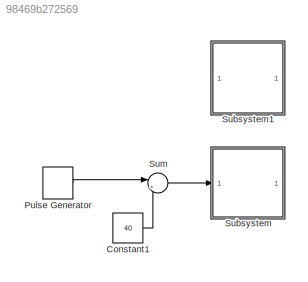
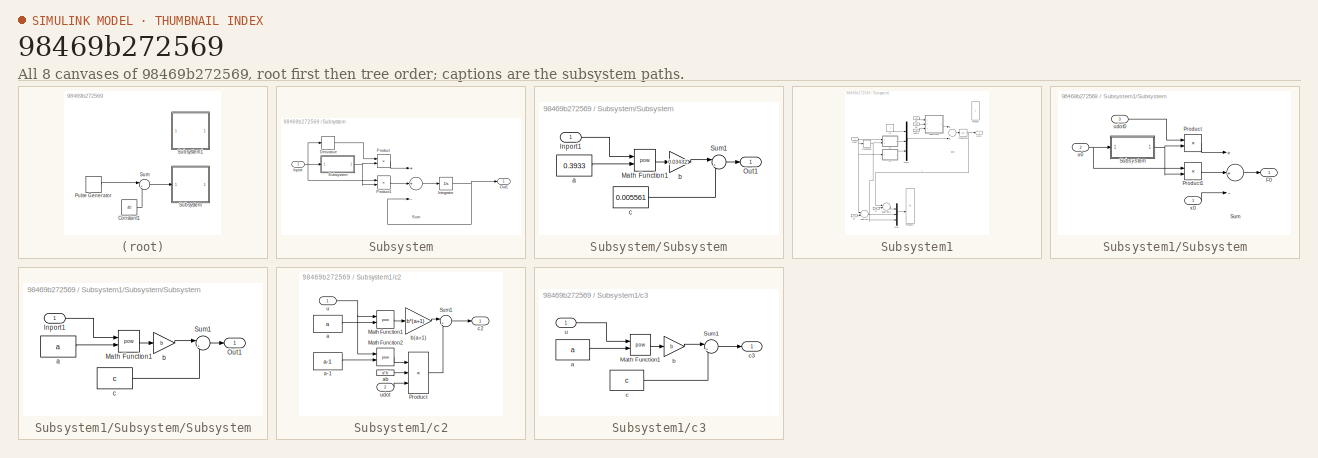
[diagram: thumbnail index - all 8 canvases of the model, root first then tree order]
MODEL slx_98469b272569
KIND model
CONFIG AbsTol = auto
CONFIG EnableMultiTasking = off
CONFIG FixedStep = auto
CONFIG MaxStep = auto
CONFIG MinStep = auto
CONFIG RelTol = 1e-3
CONFIG SampleTimeConstraint = Unconstrained
CONFIG Solver = VariableStepAuto
CONFIG SolverName = VariableStepAuto
CONFIG StartTime = 0.0
CONFIG StopTime = 10.0
BLOCK [Constant] Constant1
  Value = 40
BLOCK [DiscretePulseGenerator] Pulse Generator
  Period = 10
  Ports = [0, 1]
  PulseType = Time based
  PulseWidth = 5
BLOCK [SubSystem] Subsystem
  Ports = [1, 1]
  RequestExecContextInheritance = off
BLOCK [Derivative] Subsystem/Derivative
BLOCK [Inport] Subsystem/Inport
  IconDisplay = Port number
BLOCK [Integrator] Subsystem/Integrator
  Ports = [1, 1]
BLOCK [Outport] Subsystem/Out1
  IconDisplay = Port number
BLOCK [Product] Subsystem/Product
  InputSameDT = off
  OutDataTypeStr = Inherit: Inherit via internal rule
  Ports = [2, 1]
  RndMeth = Floor
  SaturateOnIntegerOverflow = off
BLOCK [Product] Subsystem/Product1
  InputSameDT = off
  OutDataTypeStr = Inherit: Inherit via internal rule
  Ports = [2, 1]
  RndMeth = Floor
  SaturateOnIntegerOverflow = off
BLOCK [SubSystem] Subsystem/Subsystem
  Ports = [1, 1]
  RequestExecContextInheritance = off
BLOCK [Inport] Subsystem/Subsystem/Inport1
  IconDisplay = Port number
BLOCK [Math] Subsystem/Subsystem/Math Function1
  Operator = pow
  Ports = [2, 1]
BLOCK [Outport] Subsystem/Subsystem/Out1
  IconDisplay = Port number
BLOCK [Sum] Subsystem/Subsystem/Sum1
  IconShape = round
  InputSameDT = off
  Inputs = |++
  OutDataTypeStr = Inherit: Inherit via internal rule
  Ports = [2, 1]
  SaturateOnIntegerOverflow = off
BLOCK [Constant] Subsystem/Subsystem/a
  Value = 0.3933
BLOCK [Gain] Subsystem/Subsystem/b
  Gain = 0.03432
  OutDataTypeStr = Inherit: Inherit via internal rule
  ParamDataTypeStr = Inherit: Inherit via internal rule
  SaturateOnIntegerOverflow = off
BLOCK [Constant] Subsystem/Subsystem/c
  Value = 0.005561
BLOCK [Sum] Subsystem/Sum
  InputSameDT = off
  Inputs = ++-
  OutDataTypeStr = Inherit: Inherit via internal rule
  Ports = [3, 1]
  SaturateOnIntegerOverflow = off
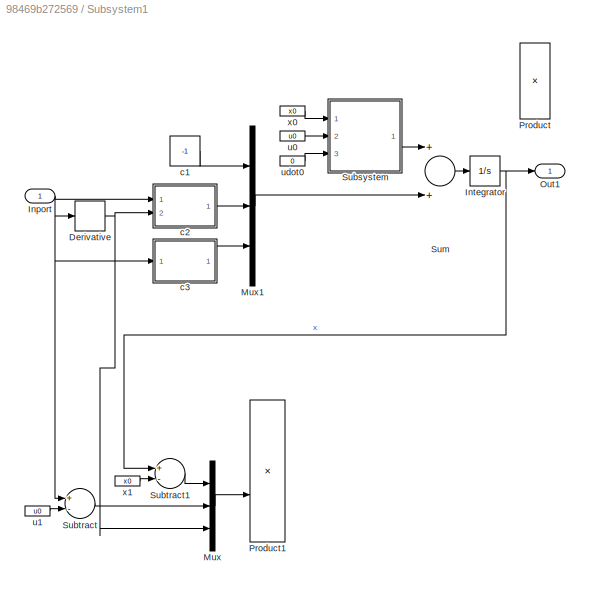
BLOCK [SubSystem] Subsystem1
  Ports = [1, 1]
  RequestExecContextInheritance = off
BLOCK [Derivative] Subsystem1/Derivative
BLOCK [Inport] Subsystem1/Inport
  IconDisplay = Port number
BLOCK [Integrator] Subsystem1/Integrator
  Ports = [1, 1]
BLOCK [Mux] Subsystem1/Mux
  Commented = on
  DisplayOption = bar
  Inputs = 3
  Ports = [3, 1]
BLOCK [Mux] Subsystem1/Mux1
  DisplayOption = bar
  Inputs = 3
  Ports = [3, 1]
BLOCK [Outport] Subsystem1/Out1
  IconDisplay = Port number
BLOCK [Product] Subsystem1/Product
  InputSameDT = off
  OutDataTypeStr = Inherit: Inherit via internal rule
  Ports = [2, 1]
  RndMeth = Floor
  SaturateOnIntegerOverflow = off
BLOCK [Product] Subsystem1/Product1
  Commented = on
  InputSameDT = off
  Multiplication = Matrix(*)
  OutDataTypeStr = Inherit: Inherit via internal rule
  Ports = [2, 1]
  RndMeth = Floor
  SaturateOnIntegerOverflow = off
BLOCK [SubSystem] Subsystem1/Subsystem
  Ports = [3, 1]
  RequestExecContextInheritance = off
BLOCK [Outport] Subsystem1/Subsystem/F0
  IconDisplay = Port number
BLOCK [Product] Subsystem1/Subsystem/Product
  InputSameDT = off
  OutDataTypeStr = Inherit: Inherit via internal rule
  Ports = [2, 1]
  RndMeth = Floor
  SaturateOnIntegerOverflow = off
BLOCK [Product] Subsystem1/Subsystem/Product1
  InputSameDT = off
  OutDataTypeStr = Inherit: Inherit via internal rule
  Ports = [2, 1]
  RndMeth = Floor
  SaturateOnIntegerOverflow = off
BLOCK [SubSystem] Subsystem1/Subsystem/Subsystem
  Ports = [1, 1]
  RequestExecContextInheritance = off
BLOCK [Inport] Subsystem1/Subsystem/Subsystem/Inport1
  IconDisplay = Port number
BLOCK [Math] Subsystem1/Subsystem/Subsystem/Math Function1
  Operator = pow
  Ports = [2, 1]
BLOCK [Outport] Subsystem1/Subsystem/Subsystem/Out1
  IconDisplay = Port number
BLOCK [Sum] Subsystem1/Subsystem/Subsystem/Sum1
  IconShape = round
  InputSameDT = off
  Inputs = |++
  OutDataTypeStr = Inherit: Inherit via internal rule
  Ports = [2, 1]
  SaturateOnIntegerOverflow = off
BLOCK [Constant] Subsystem1/Subsystem/Subsystem/a
  Value = a
BLOCK [Gain] Subsystem1/Subsystem/Subsystem/b
  Gain = b
  OutDataTypeStr = Inherit: Inherit via internal rule
  ParamDataTypeStr = Inherit: Inherit via internal rule
  SaturateOnIntegerOverflow = off
BLOCK [Constant] Subsystem1/Subsystem/Subsystem/c
  Value = c
BLOCK [Sum] Subsystem1/Subsystem/Sum
  InputSameDT = off
  Inputs = ++-
  OutDataTypeStr = Inherit: Inherit via internal rule
  Ports = [3, 1]
  SaturateOnIntegerOverflow = off
BLOCK [Inport] Subsystem1/Subsystem/u0
  IconDisplay = Port number
  Port = 2
BLOCK [Inport] Subsystem1/Subsystem/udot0
  IconDisplay = Port number
  Port = 3
BLOCK [Inport] Subsystem1/Subsystem/x0
  IconDisplay = Port number
BLOCK [Sum] Subsystem1/Subtract
  Commented = on
  InputSameDT = off
  Inputs = +-
  OutDataTypeStr = Inherit: Inherit via internal rule
  Ports = [2, 1]
  SaturateOnIntegerOverflow = off
BLOCK [Sum] Subsystem1/Subtract1
  Commented = on
  InputSameDT = off
  Inputs = +-
  OutDataTypeStr = Inherit: Inherit via internal rule
  Ports = [2, 1]
  SaturateOnIntegerOverflow = off
BLOCK [Sum] Subsystem1/Sum
  InputSameDT = off
  OutDataTypeStr = Inherit: Inherit via internal rule
  Ports = [2, 1]
  SaturateOnIntegerOverflow = off
BLOCK [Constant] Subsystem1/c1
  Value = -1
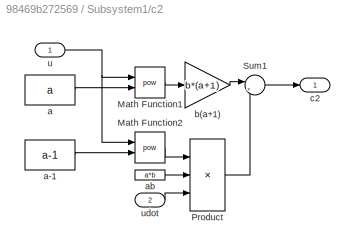
BLOCK [SubSystem] Subsystem1/c2
  Ports = [2, 1]
  RequestExecContextInheritance = off
BLOCK [Math] Subsystem1/c2/Math Function1
  Operator = pow
  Ports = [2, 1]
BLOCK [Math] Subsystem1/c2/Math Function2
  Operator = pow
  Ports = [2, 1]
BLOCK [Product] Subsystem1/c2/Product
  InputSameDT = off
  Inputs = 3
  OutDataTypeStr = Inherit: Inherit via internal rule
  Ports = [3, 1]
  RndMeth = Floor
  SaturateOnIntegerOverflow = off
BLOCK [Sum] Subsystem1/c2/Sum1
  IconShape = round
  InputSameDT = off
  Inputs = |++
  OutDataTypeStr = Inherit: Inherit via internal rule
  Ports = [2, 1]
  SaturateOnIntegerOverflow = off
BLOCK [Constant] Subsystem1/c2/a
  Value = a
BLOCK [Constant] Subsystem1/c2/a-1
  Value = a-1
BLOCK [Constant] Subsystem1/c2/ab
  Value = a*b
BLOCK [Gain] Subsystem1/c2/b(a+1)
  Gain = b*(a+1)
  OutDataTypeStr = Inherit: Inherit via internal rule
  ParamDataTypeStr = Inherit: Inherit via internal rule
  SaturateOnIntegerOverflow = off
BLOCK [Outport] Subsystem1/c2/c2
  IconDisplay = Port number
BLOCK [Inport] Subsystem1/c2/u
  IconDisplay = Port number
BLOCK [Inport] Subsystem1/c2/udot
  IconDisplay = Port number
  Port = 2
BLOCK [SubSystem] Subsystem1/c3
  Ports = [1, 1]
  RequestExecContextInheritance = off
BLOCK [Math] Subsystem1/c3/Math Function1
  Operator = pow
  Ports = [2, 1]
BLOCK [Sum] Subsystem1/c3/Sum1
  IconShape = round
  InputSameDT = off
  Inputs = |++
  OutDataTypeStr = Inherit: Inherit via internal rule
  Ports = [2, 1]
  SaturateOnIntegerOverflow = off
BLOCK [Constant] Subsystem1/c3/a
  Value = a
BLOCK [Gain] Subsystem1/c3/b
  Gain = b
  OutDataTypeStr = Inherit: Inherit via internal rule
  ParamDataTypeStr = Inherit: Inherit via internal rule
  SaturateOnIntegerOverflow = off
BLOCK [Constant] Subsystem1/c3/c
  Value = c
BLOCK [Outport] Subsystem1/c3/c3
  IconDisplay = Port number
BLOCK [Inport] Subsystem1/c3/u
  IconDisplay = Port number
BLOCK [Constant] Subsystem1/u0
  Value = u0
BLOCK [Constant] Subsystem1/u1
  Commented = on
  Value = u0
BLOCK [Constant] Subsystem1/udot0
  Value = 0
BLOCK [Constant] Subsystem1/x0
  Value = x0
BLOCK [Constant] Subsystem1/x1
  Commented = on
  Value = x0
BLOCK [Sum] Sum
  IconShape = round
  InputSameDT = off
  Inputs = |+-
  OutDataTypeStr = Inherit: Inherit via internal rule
  Ports = [2, 1]
  SaturateOnIntegerOverflow = off
LINE Constant1:1 -> Sum:2
LINE Pulse Generator:1 -> Sum:1
LINE Subsystem/Derivative:1 -> Subsystem/Product:1
NET Subsystem/Inport:1 -> Subsystem/Derivative:1, Subsystem/Product1:1, Subsystem/Subsystem:1
NET Subsystem/Integrator:1 -> Subsystem/Out1:1, Subsystem/Sum:3
LINE Subsystem/Product1:1 -> Subsystem/Sum:2
LINE Subsystem/Product:1 -> Subsystem/Sum:1
LINE Subsystem/Subsystem/Inport1:1 -> Subsystem/Subsystem/Math Function1:1
LINE Subsystem/Subsystem/Math Function1:1 -> Subsystem/Subsystem/b:1
LINE Subsystem/Subsystem/Sum1:1 -> Subsystem/Subsystem/Out1:1
LINE Subsystem/Subsystem/a:1 -> Subsystem/Subsystem/Math Function1:2
LINE Subsystem/Subsystem/b:1 -> Subsystem/Subsystem/Sum1:1
LINE Subsystem/Subsystem/c:1 -> Subsystem/Subsystem/Sum1:2
NET Subsystem/Subsystem:1 -> Subsystem/Product1:2, Subsystem/Product:2
LINE Subsystem/Sum:1 -> Subsystem/Integrator:1
NET Subsystem1/Derivative:1 -> Subsystem1/Mux:3, Subsystem1/c2:2
NET Subsystem1/Inport:1 -> Subsystem1/Derivative:1, Subsystem1/Subtract:1, Subsystem1/c2:1, Subsystem1/c3:1
NET Subsystem1/Integrator:1 -> Subsystem1/Out1:1, Subsystem1/Subtract1:1
LINE Subsystem1/Mux1:1 -> Subsystem1/Sum:2
LINE Subsystem1/Mux:1 -> Subsystem1/Product1:2
LINE Subsystem1/Subsystem/Product1:1 -> Subsystem1/Subsystem/Sum:2
LINE Subsystem1/Subsystem/Product:1 -> Subsystem1/Subsystem/Sum:1
LINE Subsystem1/Subsystem/Subsystem/Inport1:1 -> Subsystem1/Subsystem/Subsystem/Math Function1:1
LINE Subsystem1/Subsystem/Subsystem/Math Function1:1 -> Subsystem1/Subsystem/Subsystem/b:1
LINE Subsystem1/Subsystem/Subsystem/Sum1:1 -> Subsystem1/Subsystem/Subsystem/Out1:1
LINE Subsystem1/Subsystem/Subsystem/a:1 -> Subsystem1/Subsystem/Subsystem/Math Function1:2
LINE Subsystem1/Subsystem/Subsystem/b:1 -> Subsystem1/Subsystem/Subsystem/Sum1:1
LINE Subsystem1/Subsystem/Subsystem/c:1 -> Subsystem1/Subsystem/Subsystem/Sum1:2
NET Subsystem1/Subsystem/Subsystem:1 -> Subsystem1/Subsystem/Product1:2, Subsystem1/Subsystem/Product:2
LINE Subsystem1/Subsystem/Sum:1 -> Subsystem1/Subsystem/F0:1
NET Subsystem1/Subsystem/u0:1 -> Subsystem1/Subsystem/Product1:1, Subsystem1/Subsystem/Subsystem:1
LINE Subsystem1/Subsystem/udot0:1 -> Subsystem1/Subsystem/Product:1
LINE Subsystem1/Subsystem/x0:1 -> Subsystem1/Subsystem/Sum:3
LINE Subsystem1/Subsystem:1 -> Subsystem1/Sum:1
LINE Subsystem1/Subtract1:1 -> Subsystem1/Mux:1
LINE Subsystem1/Subtract:1 -> Subsystem1/Mux:2
LINE Subsystem1/Sum:1 -> Subsystem1/Integrator:1
LINE Subsystem1/c1:1 -> Subsystem1/Mux1:1
LINE Subsystem1/c2/Math Function1:1 -> Subsystem1/c2/b(a+1):1
LINE Subsystem1/c2/Math Function2:1 -> Subsystem1/c2/Product:1
LINE Subsystem1/c2/Product:1 -> Subsystem1/c2/Sum1:2
LINE Subsystem1/c2/Sum1:1 -> Subsystem1/c2/c2:1
LINE Subsystem1/c2/a-1:1 -> Subsystem1/c2/Math Function2:2
LINE Subsystem1/c2/a:1 -> Subsystem1/c2/Math Function1:2
LINE Subsystem1/c2/ab:1 -> Subsystem1/c2/Product:2
LINE Subsystem1/c2/b(a+1):1 -> Subsystem1/c2/Sum1:1
NET Subsystem1/c2/u:1 -> Subsystem1/c2/Math Function1:1, Subsystem1/c2/Math Function2:1
LINE Subsystem1/c2/udot:1 -> Subsystem1/c2/Product:3
LINE Subsystem1/c2:1 -> Subsystem1/Mux1:2
LINE Subsystem1/c3/Math Function1:1 -> Subsystem1/c3/b:1
LINE Subsystem1/c3/Sum1:1 -> Subsystem1/c3/c3:1
LINE Subsystem1/c3/a:1 -> Subsystem1/c3/Math Function1:2
LINE Subsystem1/c3/b:1 -> Subsystem1/c3/Sum1:1
LINE Subsystem1/c3/c:1 -> Subsystem1/c3/Sum1:2
LINE Subsystem1/c3/u:1 -> Subsystem1/c3/Math Function1:1
LINE Subsystem1/c3:1 -> Subsystem1/Mux1:3
LINE Subsystem1/u0:1 -> Subsystem1/Subsystem:2
LINE Subsystem1/u1:1 -> Subsystem1/Subtract:2
LINE Subsystem1/udot0:1 -> Subsystem1/Subsystem:3
LINE Subsystem1/x0:1 -> Subsystem1/Subsystem:1
LINE Subsystem1/x1:1 -> Subsystem1/Subtract1:2
LINE Sum:1 -> Subsystem:1
note: NET lines group one-source signal fan-out (src -> all destinations, sorted); 1:1 wires keep LINE
